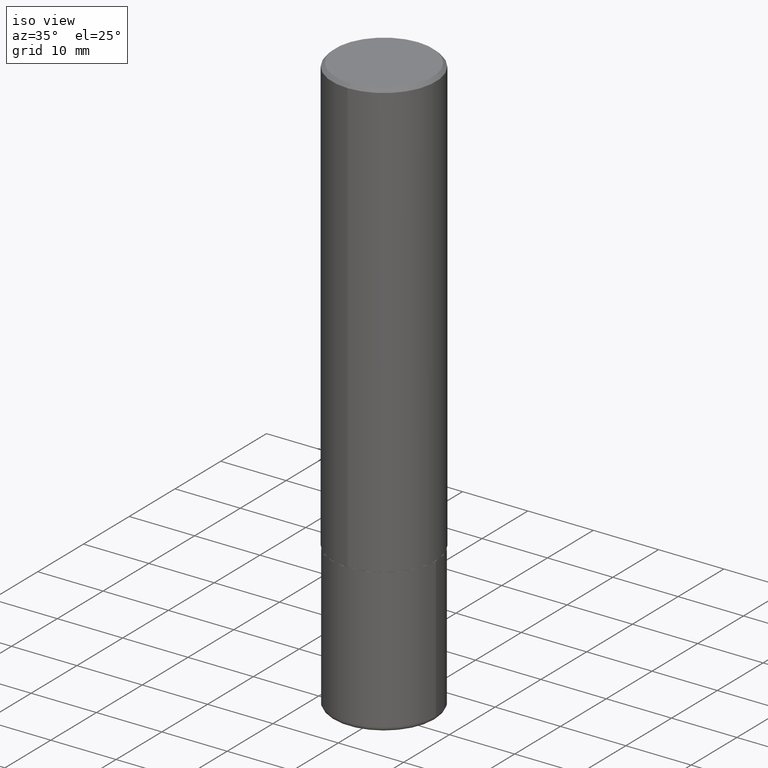
[diagram: clean part render]
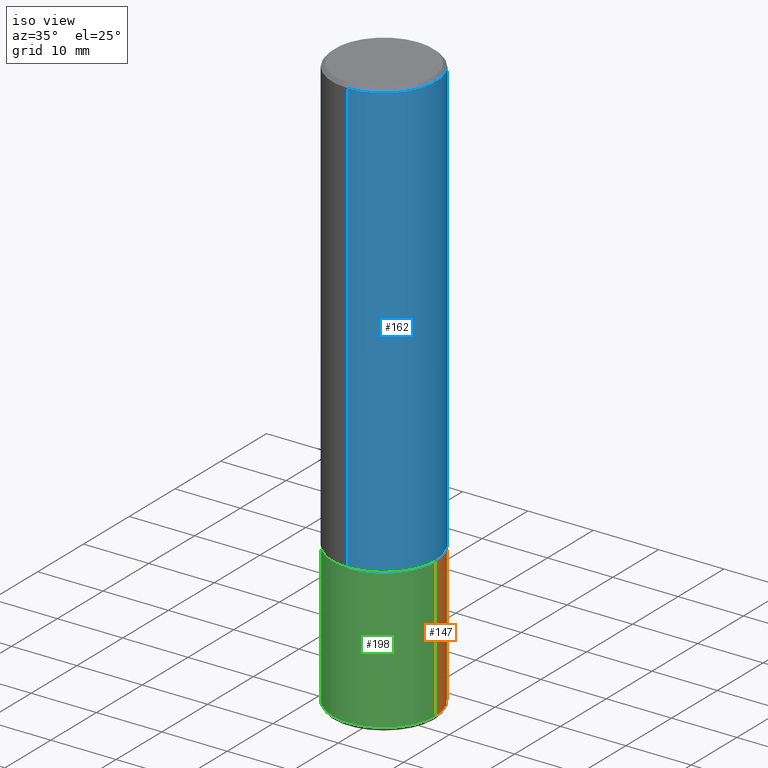
[diagram: same view with three faces highlighted in distinct colors, each labeled with its STEP entity id]
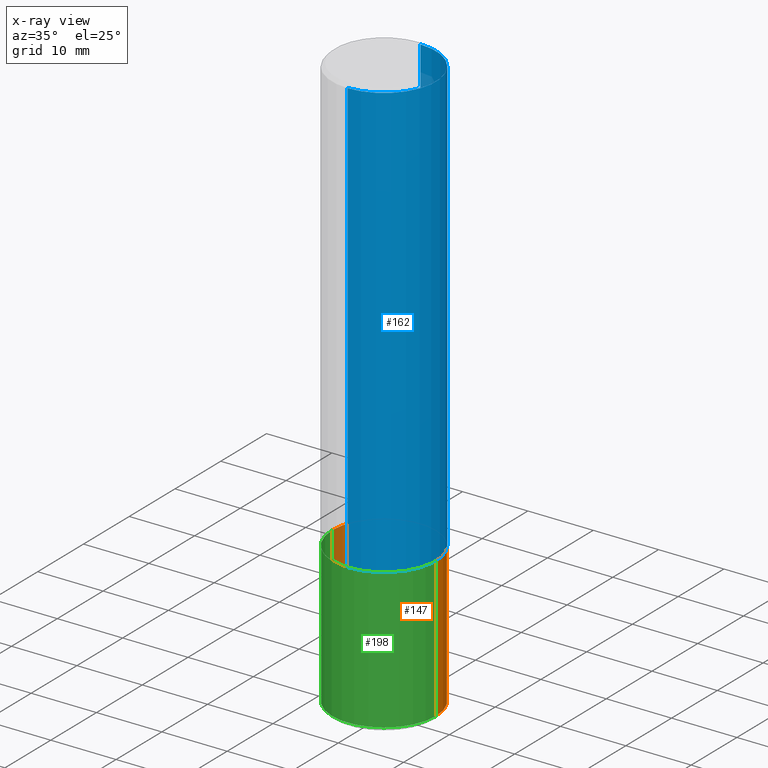
[diagram: x-ray of the same camera — body ghosted, the three highlighted faces saturated]
A machine part, iso view with three faces highlighted in distinct colors.
The next image is the same camera in x-ray (body ghosted, the three faces saturated) — at least one of them is partly hidden behind the body in this view.
Their STEP definitions:

[orange] entity #147 — the highlighted cylindrical surface (partial cylindrical patch) has radius 7.9375 mm, axis along (-0, 0, 1).
#25 = VECTOR ( 'NONE', #87, 39.37007874015748143 ) ;
#39 = CARTESIAN_POINT ( 'NONE',  ( -0.3124999999999998890, -9.912451603229616350E-15, -3.474999999999999201 ) ) ;
#61 = ORIENTED_EDGE ( 'NONE', *, *, #290, .T. ) ;
#67 = VERTEX_POINT ( 'NONE', #123 ) ;
#68 = CARTESIAN_POINT ( 'NONE',  ( -0.3125000000000000000, 2.220446049250313081E-15, -1.537167215704658232E-29 ) ) ;
#75 = CARTESIAN_POINT ( 'NONE',  ( 8.498004101493349225E-29, -1.213289765247992785E-14, -3.474999999999999201 ) ) ;
#87 = DIRECTION ( 'NONE',  ( -2.445468806185136877E-29, 3.491481338843145188E-15, 1.000000000000000000 ) ) ;
#88 = DIRECTION ( 'NONE',  ( -2.445468806185136597E-29, 3.491481338843145583E-15, 1.000000000000000000 ) ) ;
#94 = CIRCLE ( 'NONE', #306, 0.3125000000000000000 ) ;
#96 = EDGE_CURVE ( 'NONE', #384, #308, #183, .T. ) ;
#113 = DIRECTION ( 'NONE',  ( -2.445468806185136597E-29, 3.491481338843145583E-15, 1.000000000000000000 ) ) ;
#117 = ORIENTED_EDGE ( 'NONE', *, *, #96, .F. ) ;
#123 = CARTESIAN_POINT ( 'NONE',  ( -0.3125000000000000000, -8.437300737568386669E-15, -2.629999999999999893 ) ) ;
#144 = AXIS2_PLACEMENT_3D ( 'NONE', #75, #267, #201 ) ;
#147 = ADVANCED_FACE ( 'NONE', ( #370 ), #175, .T. ) ;
#157 = CARTESIAN_POINT ( 'NONE',  ( 0.3124999999999998890, -1.431507348925688462E-14, -3.474999999999999201 ) ) ;
#166 = VECTOR ( 'NONE', #240, 39.37007874015748143 ) ;
#175 = CYLINDRICAL_SURFACE ( 'NONE', #206, 0.3125000000000000000 ) ;
#183 = LINE ( 'NONE', #251, #25 ) ;
#201 = DIRECTION ( 'NONE',  ( 1.000000000000000000, -6.982962677686269077E-15, 0.000000000000000000 ) ) ;
#205 = VERTEX_POINT ( 'NONE', #39 ) ;
#206 = AXIS2_PLACEMENT_3D ( 'NONE', #309, #113, #246 ) ;
#240 = DIRECTION ( 'NONE',  ( -2.445468806185136877E-29, 3.491481338843145188E-15, 1.000000000000000000 ) ) ;
#246 = DIRECTION ( 'NONE',  ( 1.000000000000000000, -6.982962677686266711E-15, 4.876176775795936353E-29 ) ) ;
#249 = EDGE_CURVE ( 'NONE', #384, #205, #323, .T. ) ;
#251 = CARTESIAN_POINT ( 'NONE',  ( 0.3125000000000000000, -2.182175836776958347E-15, 1.523805242436230075E-29 ) ) ;
#267 = DIRECTION ( 'NONE',  ( -2.445468806185136597E-29, 3.491481338843145583E-15, 1.000000000000000000 ) ) ;
#274 = LINE ( 'NONE', #68, #166 ) ;
#290 = EDGE_CURVE ( 'NONE', #205, #67, #274, .T. ) ;
#306 = AXIS2_PLACEMENT_3D ( 'NONE', #377, #88, #350 ) ;
#308 = VERTEX_POINT ( 'NONE', #394 ) ;
#309 = CARTESIAN_POINT ( 'NONE',  ( 0.000000000000000000, 0.000000000000000000, 0.000000000000000000 ) ) ;
#315 = ORIENTED_EDGE ( 'NONE', *, *, #321, .F. ) ;
#321 = EDGE_CURVE ( 'NONE', #308, #67, #94, .T. ) ;
#323 = CIRCLE ( 'NONE', #144, 0.3125000000000000000 ) ;
#350 = DIRECTION ( 'NONE',  ( 1.000000000000000000, -6.982962677686269077E-15, 0.000000000000000000 ) ) ;
#370 = FACE_OUTER_BOUND ( 'NONE', #402, .T. ) ;
#377 = CARTESIAN_POINT ( 'NONE',  ( 6.431582960266909339E-29, -9.182595921157471648E-15, -2.629999999999999893 ) ) ;
#384 = VERTEX_POINT ( 'NONE', #157 ) ;
#394 = CARTESIAN_POINT ( 'NONE',  ( 0.3125000000000000000, -1.136477175793443157E-14, -2.629999999999999893 ) ) ;
#402 = EDGE_LOOP ( 'NONE', ( #405, #61, #315, #117 ) ) ;
#405 = ORIENTED_EDGE ( 'NONE', *, *, #249, .T. ) ;

[blue] entity #162 — the highlighted cylindrical surface (partial cylindrical patch) has radius 7.9375 mm, axis along (-0, 0, 1).
#1 = ORIENTED_EDGE ( 'NONE', *, *, #336, .F. ) ;
#2 = FACE_OUTER_BOUND ( 'NONE', #213, .T. ) ;
#32 = CYLINDRICAL_SURFACE ( 'NONE', #145, 0.3125000000000001665 ) ;
#40 = AXIS2_PLACEMENT_3D ( 'NONE', #282, #114, #371 ) ;
#41 = DIRECTION ( 'NONE',  ( -6.982962677686265922E-15, -1.000000000000000000, 3.496765431890253764E-15 ) ) ;
#43 = CIRCLE ( 'NONE', #273, 0.3125000000000002776 ) ;
#55 = VERTEX_POINT ( 'NONE', #348 ) ;
#56 = LINE ( 'NONE', #409, #407 ) ;
#91 = DIRECTION ( 'NONE',  ( -6.982962677686265133E-15, -1.000000000000000000, 3.490175579528058691E-15 ) ) ;
#114 = DIRECTION ( 'NONE',  ( -2.446380613041465709E-29, 3.490175579528058691E-15, 1.000000000000000000 ) ) ;
#126 = LINE ( 'NONE', #383, #199 ) ;
#132 = VERTEX_POINT ( 'NONE', #317 ) ;
#145 = AXIS2_PLACEMENT_3D ( 'NONE', #258, #184, #91 ) ;
#156 = CARTESIAN_POINT ( 'NONE',  ( 6.431534631686015280E-29, -9.175671598579269369E-15, -2.629000000000000448 ) ) ;
#162 = ADVANCED_FACE ( 'NONE', ( #2 ), #32, .T. ) ;
#176 = EDGE_CURVE ( 'NONE', #390, #55, #43, .T. ) ;
#184 = DIRECTION ( 'NONE',  ( -2.446380613041465709E-29, 3.490175579528058691E-15, 1.000000000000000000 ) ) ;
#193 = ORIENTED_EDGE ( 'NONE', *, *, #176, .T. ) ;
#199 = VECTOR ( 'NONE', #356, 39.37007874015748143 ) ;
#203 = ORIENTED_EDGE ( 'NONE', *, *, #373, .T. ) ;
#213 = EDGE_LOOP ( 'NONE', ( #193, #203, #1, #327 ) ) ;
#231 = CARTESIAN_POINT ( 'NONE',  ( 2.182175836776958741E-15, 0.3124999999999999445, -0.02000000000000116268 ) ) ;
#250 = DIRECTION ( 'NONE',  ( -2.446380613041465709E-29, 3.490175579528058691E-15, 1.000000000000000000 ) ) ;
#258 = CARTESIAN_POINT ( 'NONE',  ( 0.000000000000000000, 0.000000000000000000, 0.000000000000000000 ) ) ;
#273 = AXIS2_PLACEMENT_3D ( 'NONE', #156, #293, #41 ) ;
#282 = CARTESIAN_POINT ( 'NONE',  ( 4.892761226082948269E-31, -6.980351159056141343E-17, -0.02000000000000006981 ) ) ;
#289 = CIRCLE ( 'NONE', #40, 0.3125000000000000000 ) ;
#293 = DIRECTION ( 'NONE',  ( -2.446380613041465709E-29, 3.490175579528058691E-15, 1.000000000000000000 ) ) ;
#317 = CARTESIAN_POINT ( 'NONE',  ( -2.143905624303602824E-15, -0.3125000000000000555, -0.01999999999999897693 ) ) ;
#319 = CARTESIAN_POINT ( 'NONE',  ( -2.182175836776895633E-15, -0.3125000000000094369, -2.628999999999999115 ) ) ;
#327 = ORIENTED_EDGE ( 'NONE', *, *, #346, .F. ) ;
#336 = EDGE_CURVE ( 'NONE', #132, #398, #289, .T. ) ;
#346 = EDGE_CURVE ( 'NONE', #390, #132, #56, .T. ) ;
#348 = CARTESIAN_POINT ( 'NONE',  ( 2.220446049250346607E-15, 0.3124999999999911182, -2.629000000000001336 ) ) ;
#356 = DIRECTION ( 'NONE',  ( -2.446380613041465709E-29, 3.490175579528058691E-15, 1.000000000000000000 ) ) ;
#371 = DIRECTION ( 'NONE',  ( -6.982962677686265133E-15, -1.000000000000000000, 3.496765431890256920E-15 ) ) ;
#373 = EDGE_CURVE ( 'NONE', #55, #398, #126, .T. ) ;
#383 = CARTESIAN_POINT ( 'NONE',  ( 2.220446049250313475E-15, 0.3125000000000001665, -1.090679868602518933E-15 ) ) ;
#390 = VERTEX_POINT ( 'NONE', #319 ) ;
#398 = VERTEX_POINT ( 'NONE', #231 ) ;
#407 = VECTOR ( 'NONE', #250, 39.37007874015748143 ) ;
#409 = CARTESIAN_POINT ( 'NONE',  ( -2.182175836776959136E-15, -0.3125000000000001665, 1.090679868602518933E-15 ) ) ;

[green] entity #198 — the highlighted cylindrical surface (partial cylindrical patch) has radius 7.9375 mm, axis along (-0, 0, 1).
#25 = VECTOR ( 'NONE', #87, 39.37007874015748143 ) ;
#37 = DIRECTION ( 'NONE',  ( -2.445468806185136597E-29, 3.491481338843145583E-15, 1.000000000000000000 ) ) ;
#39 = CARTESIAN_POINT ( 'NONE',  ( -0.3124999999999998890, -9.912451603229616350E-15, -3.474999999999999201 ) ) ;
#67 = VERTEX_POINT ( 'NONE', #123 ) ;
#68 = CARTESIAN_POINT ( 'NONE',  ( -0.3125000000000000000, 2.220446049250313081E-15, -1.537167215704658232E-29 ) ) ;
#81 = CIRCLE ( 'NONE', #285, 0.3125000000000000000 ) ;
#87 = DIRECTION ( 'NONE',  ( -2.445468806185136877E-29, 3.491481338843145188E-15, 1.000000000000000000 ) ) ;
#96 = EDGE_CURVE ( 'NONE', #384, #308, #183, .T. ) ;
#97 = DIRECTION ( 'NONE',  ( 1.000000000000000000, -6.982962677686269077E-15, 0.000000000000000000 ) ) ;
#123 = CARTESIAN_POINT ( 'NONE',  ( -0.3125000000000000000, -8.437300737568386669E-15, -2.629999999999999893 ) ) ;
#134 = EDGE_LOOP ( 'NONE', ( #221, #343, #378, #388 ) ) ;
#140 = DIRECTION ( 'NONE',  ( -2.445468806185136597E-29, 3.491481338843145583E-15, 1.000000000000000000 ) ) ;
#157 = CARTESIAN_POINT ( 'NONE',  ( 0.3124999999999998890, -1.431507348925688462E-14, -3.474999999999999201 ) ) ;
#158 = AXIS2_PLACEMENT_3D ( 'NONE', #304, #140, #328 ) ;
#160 = DIRECTION ( 'NONE',  ( 1.000000000000000000, -6.982962677686269077E-15, 0.000000000000000000 ) ) ;
#165 = CYLINDRICAL_SURFACE ( 'NONE', #158, 0.3125000000000000000 ) ;
#166 = VECTOR ( 'NONE', #240, 39.37007874015748143 ) ;
#183 = LINE ( 'NONE', #251, #25 ) ;
#194 = CARTESIAN_POINT ( 'NONE',  ( 8.498004101493349225E-29, -1.213289765247992785E-14, -3.474999999999999201 ) ) ;
#198 = ADVANCED_FACE ( 'NONE', ( #397 ), #165, .T. ) ;
#205 = VERTEX_POINT ( 'NONE', #39 ) ;
#221 = ORIENTED_EDGE ( 'NONE', *, *, #290, .F. ) ;
#233 = CARTESIAN_POINT ( 'NONE',  ( 6.431582960266909339E-29, -9.182595921157471648E-15, -2.629999999999999893 ) ) ;
#240 = DIRECTION ( 'NONE',  ( -2.445468806185136877E-29, 3.491481338843145188E-15, 1.000000000000000000 ) ) ;
#251 = CARTESIAN_POINT ( 'NONE',  ( 0.3125000000000000000, -2.182175836776958347E-15, 1.523805242436230075E-29 ) ) ;
#274 = LINE ( 'NONE', #68, #166 ) ;
#285 = AXIS2_PLACEMENT_3D ( 'NONE', #233, #37, #160 ) ;
#290 = EDGE_CURVE ( 'NONE', #205, #67, #274, .T. ) ;
#295 = EDGE_CURVE ( 'NONE', #205, #384, #392, .T. ) ;
#302 = EDGE_CURVE ( 'NONE', #67, #308, #81, .T. ) ;
#304 = CARTESIAN_POINT ( 'NONE',  ( 0.000000000000000000, 0.000000000000000000, 0.000000000000000000 ) ) ;
#308 = VERTEX_POINT ( 'NONE', #394 ) ;
#328 = DIRECTION ( 'NONE',  ( 1.000000000000000000, -6.982962677686266711E-15, 4.876176775795936353E-29 ) ) ;
#343 = ORIENTED_EDGE ( 'NONE', *, *, #295, .T. ) ;
#367 = DIRECTION ( 'NONE',  ( -2.445468806185136597E-29, 3.491481338843145583E-15, 1.000000000000000000 ) ) ;
#378 = ORIENTED_EDGE ( 'NONE', *, *, #96, .T. ) ;
#384 = VERTEX_POINT ( 'NONE', #157 ) ;
#386 = AXIS2_PLACEMENT_3D ( 'NONE', #194, #367, #97 ) ;
#388 = ORIENTED_EDGE ( 'NONE', *, *, #302, .F. ) ;
#392 = CIRCLE ( 'NONE', #386, 0.3125000000000000000 ) ;
#394 = CARTESIAN_POINT ( 'NONE',  ( 0.3125000000000000000, -1.136477175793443157E-14, -2.629999999999999893 ) ) ;
#397 = FACE_OUTER_BOUND ( 'NONE', #134, .T. ) ;